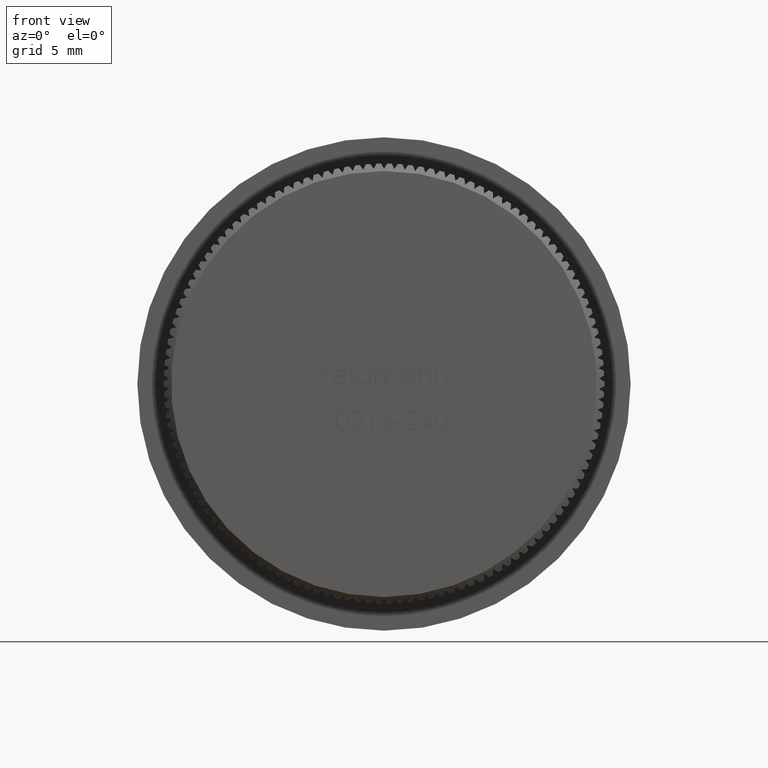
[diagram: clean part render]
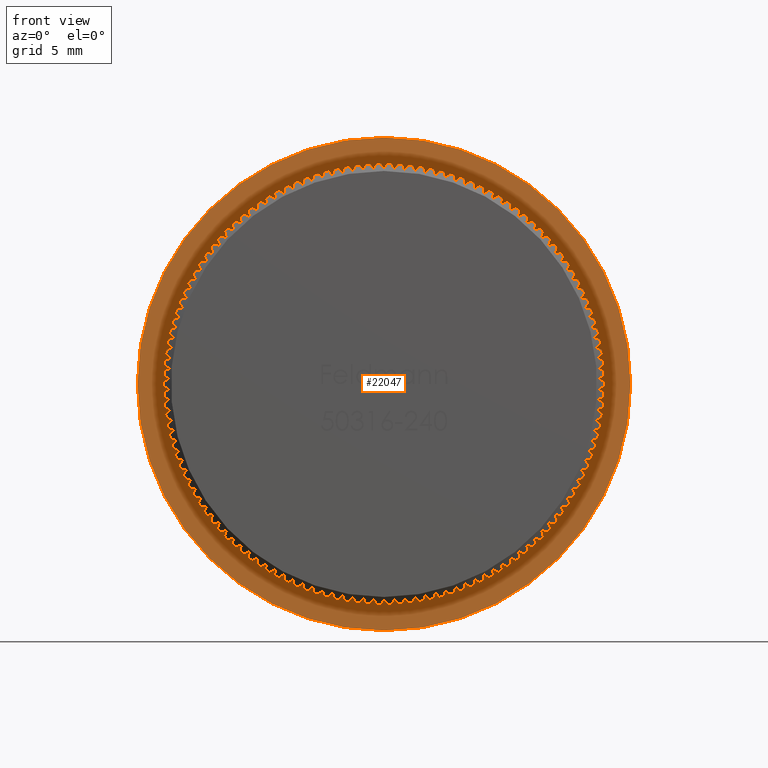
[diagram: same view with one face highlighted and labeled with its STEP entity id]
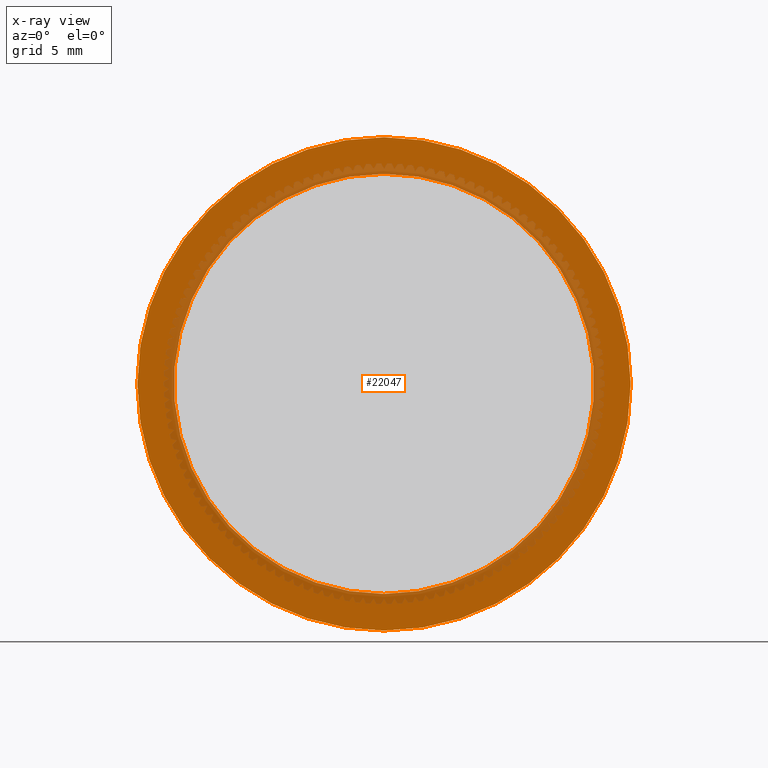
[diagram: x-ray of the same camera — body ghosted, the highlighted face saturated]
A machine part, front view. The second image highlights one B-rep face of the part: STEP entity #22047.
The next image is the same camera in x-ray: the body ghosted, the highlighted face saturated — about 24% of this face is hidden behind the body in this view.
In plain terms, the highlighted planar face has unit normal (0, -1, -0).
Its self-contained STEP definition (entity closure, byte-faithful):
#544 = ORIENTED_EDGE ( 'NONE', *, *, #11583, .T. ) ;
#795 = AXIS2_PLACEMENT_3D ( 'NONE', #19563, #25714, #14894 ) ;
#879 = AXIS2_PLACEMENT_3D ( 'NONE', #21063, #6825, #18913 ) ;
#1295 = CARTESIAN_POINT ( 'NONE',  ( 0.0000000000000000000, 7.799999999999999800, -16.85000000000000100 ) ) ;
#1327 = VERTEX_POINT ( 'NONE', #10031 ) ;
#1822 = CARTESIAN_POINT ( 'NONE',  ( 0.0000000000000000000, 7.799999999999999800, 0.0000000000000000000 ) ) ;
#2079 = DIRECTION ( 'NONE',  ( 0.0000000000000000000, 0.0000000000000000000, -1.000000000000000000 ) ) ;
#3723 = CARTESIAN_POINT ( 'NONE',  ( 2.063529856563290200E-015, 7.799999999999999800, 16.85000000000000100 ) ) ;
#3945 = AXIS2_PLACEMENT_3D ( 'NONE', #8153, #10370, #4195 ) ;
#4195 = DIRECTION ( 'NONE',  ( 0.0000000000000000000, 0.0000000000000000000, -1.000000000000000000 ) ) ;
#4901 = PLANE ( 'NONE',  #18494 ) ;
#4991 = DIRECTION ( 'NONE',  ( 0.0000000000000000000, -1.000000000000000000, -0.0000000000000000000 ) ) ;
#5255 = DIRECTION ( 'NONE',  ( 0.0000000000000000000, 0.0000000000000000000, -1.000000000000000000 ) ) ;
#5500 = ORIENTED_EDGE ( 'NONE', *, *, #25763, .T. ) ;
#5783 = EDGE_CURVE ( 'NONE', #9936, #1327, #18954, .T. ) ;
#5949 = EDGE_LOOP ( 'NONE', ( #17390, #17680 ) ) ;
#6193 = FACE_BOUND ( 'NONE', #5949, .T. ) ;
#6534 = AXIS2_PLACEMENT_3D ( 'NONE', #1822, #16368, #2079 ) ;
#6825 = DIRECTION ( 'NONE',  ( -0.0000000000000000000, -1.000000000000000000, -0.0000000000000000000 ) ) ;
#7016 = CIRCLE ( 'NONE', #879, 16.85000000000000100 ) ;
#8153 = CARTESIAN_POINT ( 'NONE',  ( 0.0000000000000000000, 7.799999999999998900, 0.0000000000000000000 ) ) ;
#9936 = VERTEX_POINT ( 'NONE', #15700 ) ;
#10031 = CARTESIAN_POINT ( 'NONE',  ( 0.0000000000000000000, 7.799999999999998900, -14.35000000000000100 ) ) ;
#10370 = DIRECTION ( 'NONE',  ( -0.0000000000000000000, -1.000000000000000000, -0.0000000000000000000 ) ) ;
#11583 = EDGE_CURVE ( 'NONE', #24066, #20630, #7016, .T. ) ;
#12919 = FACE_OUTER_BOUND ( 'NONE', #13315, .T. ) ;
#13315 = EDGE_LOOP ( 'NONE', ( #544, #5500 ) ) ;
#14894 = DIRECTION ( 'NONE',  ( 0.0000000000000000000, 0.0000000000000000000, -1.000000000000000000 ) ) ;
#15169 = CARTESIAN_POINT ( 'NONE',  ( 14.35000000000000100, 7.799999999999999800, 0.0000000000000000000 ) ) ;
#15700 = CARTESIAN_POINT ( 'NONE',  ( 1.800230794746609500E-015, 7.799999999999998900, 14.35000000000000100 ) ) ;
#16368 = DIRECTION ( 'NONE',  ( -0.0000000000000000000, -1.000000000000000000, -0.0000000000000000000 ) ) ;
#17390 = ORIENTED_EDGE ( 'NONE', *, *, #24607, .F. ) ;
#17680 = ORIENTED_EDGE ( 'NONE', *, *, #5783, .F. ) ;
#18494 = AXIS2_PLACEMENT_3D ( 'NONE', #15169, #4991, #5255 ) ;
#18798 = CIRCLE ( 'NONE', #3945, 14.35000000000000100 ) ;
#18913 = DIRECTION ( 'NONE',  ( 0.0000000000000000000, 0.0000000000000000000, -1.000000000000000000 ) ) ;
#18954 = CIRCLE ( 'NONE', #795, 14.35000000000000100 ) ;
#19563 = CARTESIAN_POINT ( 'NONE',  ( 0.0000000000000000000, 7.799999999999998900, 0.0000000000000000000 ) ) ;
#19721 = CIRCLE ( 'NONE', #6534, 16.85000000000000100 ) ;
#20630 = VERTEX_POINT ( 'NONE', #3723 ) ;
#21063 = CARTESIAN_POINT ( 'NONE',  ( 0.0000000000000000000, 7.799999999999999800, 0.0000000000000000000 ) ) ;
#22047 = ADVANCED_FACE ( 'NONE', ( #12919, #6193 ), #4901, .T. ) ;
#24066 = VERTEX_POINT ( 'NONE', #1295 ) ;
#24607 = EDGE_CURVE ( 'NONE', #1327, #9936, #18798, .T. ) ;
#25714 = DIRECTION ( 'NONE',  ( -0.0000000000000000000, -1.000000000000000000, -0.0000000000000000000 ) ) ;
#25763 = EDGE_CURVE ( 'NONE', #20630, #24066, #19721, .T. ) ;